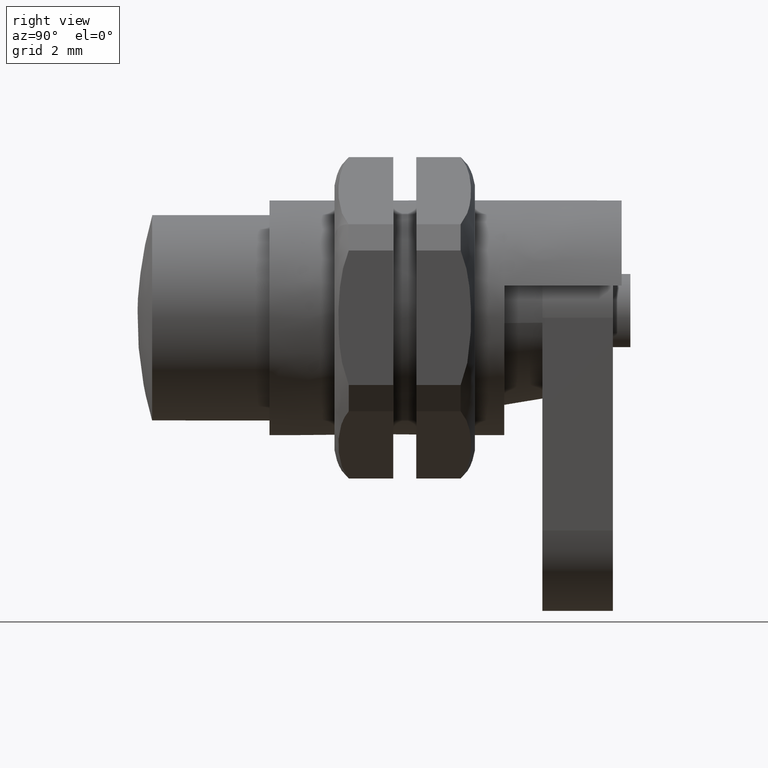
[diagram: clean part render]
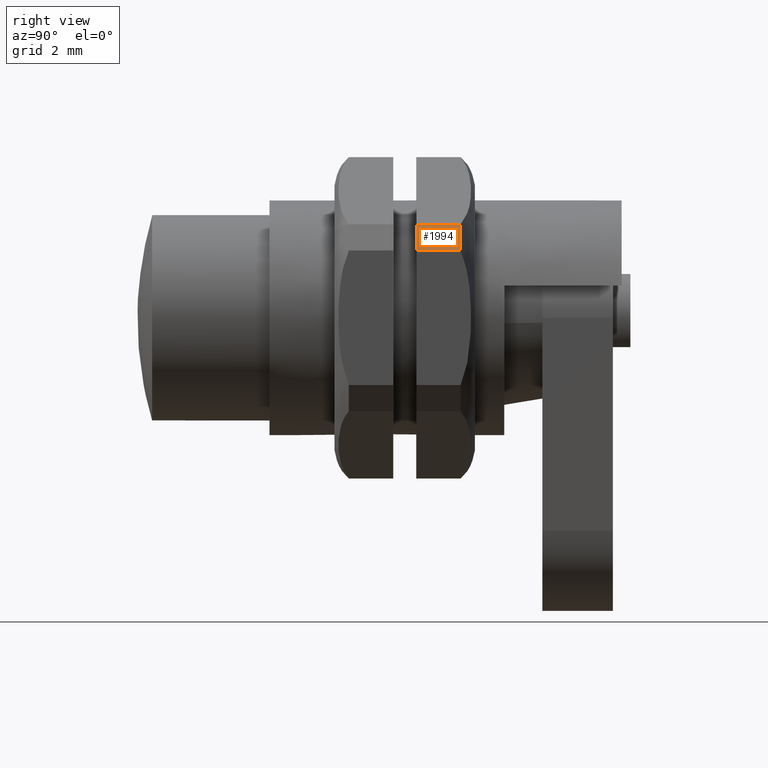
[diagram: same view with one face highlighted and labeled with its STEP entity id]
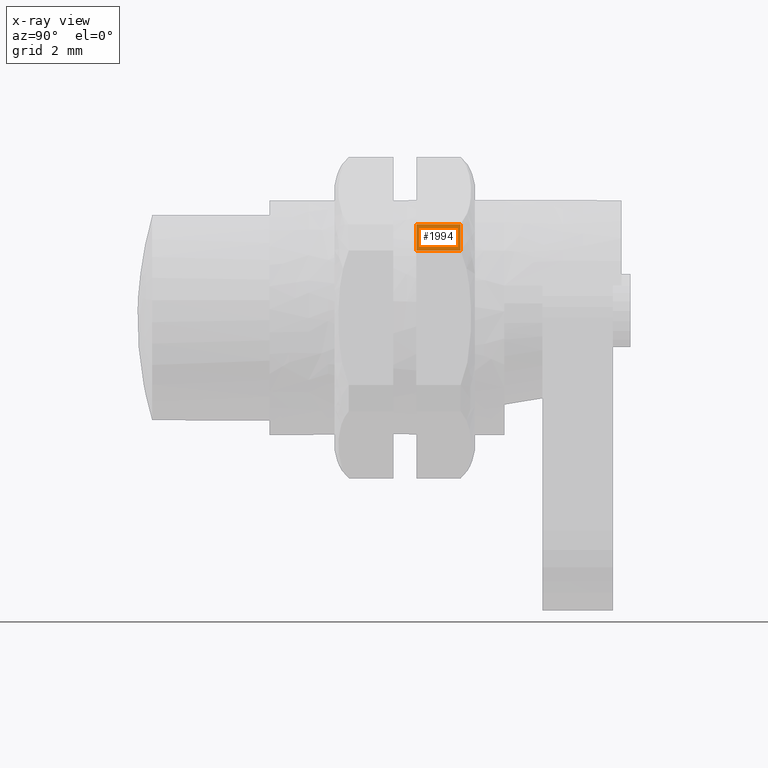
[diagram: x-ray of the same camera — body ghosted, the highlighted face saturated]
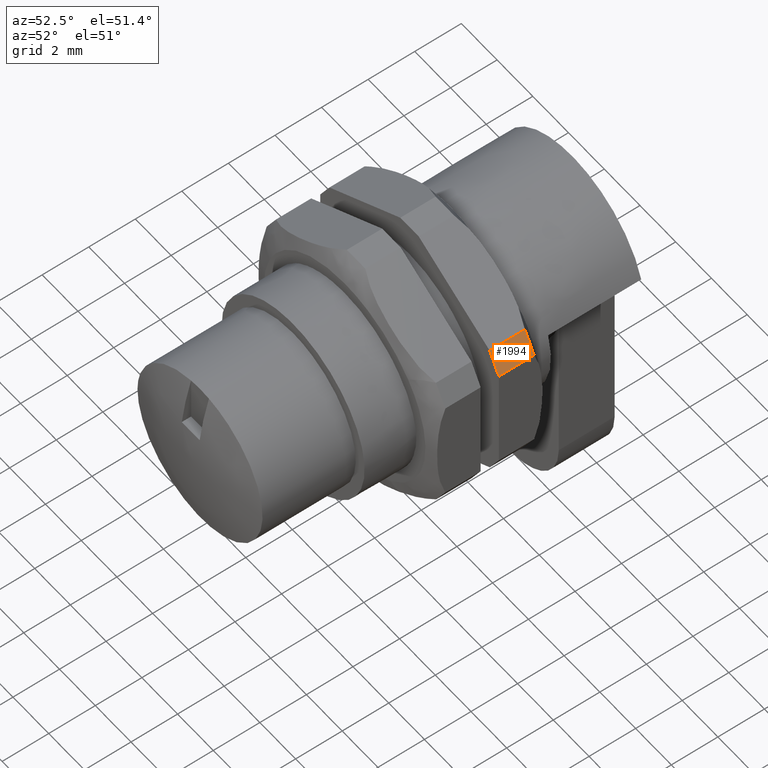
[diagram: same view with one face highlighted and labeled with its STEP entity id]
A machine part, right view. The second image highlights one B-rep face of the part: STEP entity #1994.
The next image is the same camera in x-ray: the body ghosted, the highlighted face saturated — about 0% of this face is hidden behind the body in this view.
A second angle (auxiliary view) of the same face is appended — the face is thin or edge-on in the first view.
In plain terms, the highlighted face is a freeform B-spline surface patch.
Its self-contained STEP definition (entity closure, byte-faithful):
#1441=CARTESIAN_POINT('',(90.623090530386193,-4.483213848676265,91.525342008486504));
#1442=VERTEX_POINT('',#1441);
#1470=CARTESIAN_POINT('',(90.623090530386193,-4.999999999999941,90.630598847477998));
#1471=VERTEX_POINT('',#1470);
#1472=CARTESIAN_POINT('',(90.623090530386193,-4.999999999999962,90.630598847478012));
#1473=CARTESIAN_POINT('',(90.623090530386193,-4.783816524213536,91.102349867377967));
#1474=CARTESIAN_POINT('',(90.623090530386193,-4.483213848676257,91.525342008486490));
#1482=(BOUNDED_CURVE()B_SPLINE_CURVE(2,(#1472,#1473,#1474),.UNSPECIFIED.,.F.,.U.)CURVE()GEOMETRIC_REPRESENTATION_ITEM()QUASI_UNIFORM_CURVE()RATIONAL_B_SPLINE_CURVE((1.0,0.995578517600533,1.0))REPRESENTATION_ITEM(''));
#1483=EDGE_CURVE('',#1471,#1442,#1482,.T.);
#1941=CARTESIAN_POINT('',(89.108363999999995,-4.999999999999941,90.630598847477998));
#1942=VERTEX_POINT('',#1941);
#1943=CARTESIAN_POINT('',(90.623090530386193,-4.999999999999941,90.630598847477998));
#1944=CARTESIAN_POINT('',(89.108363999999995,-4.999999999999941,90.630598847477998));
#1945=QUASI_UNIFORM_CURVE('',1,(#1943,#1944),.UNSPECIFIED.,.F.,.U.);
#1946=EDGE_CURVE('',#1471,#1942,#1945,.T.);
#1956=CARTESIAN_POINT('',(90.660958693645867,-4.453127884175061,91.567259581867830));
#1957=CARTESIAN_POINT('',(89.069549132658835,-4.453127884175061,91.567259581867830));
#1958=CARTESIAN_POINT('',(90.660958693645867,-4.788267312998820,91.104916797362264));
#1959=CARTESIAN_POINT('',(89.069549132658835,-4.788267312998820,91.104916797362264));
#1960=CARTESIAN_POINT('',(90.660958693645853,-5.021277572325077,90.583586282059926));
#1961=CARTESIAN_POINT('',(89.069549132658821,-5.021277572325077,90.583586282059926));
#1969=(BOUNDED_SURFACE()B_SPLINE_SURFACE(1,2,((#1956,#1958,#1960),(#1957,#1959,#1961)),.UNSPECIFIED.,.F.,.F.,.U.)B_SPLINE_SURFACE_WITH_KNOTS((2,2),(3,3),(0.0,1.0),(0.122919943033904,0.863308895529062),.UNSPECIFIED.)GEOMETRIC_REPRESENTATION_ITEM()RATIONAL_B_SPLINE_SURFACE(((0.997901588707397,0.992467552569968,0.997703134857822),(0.997901588707397,0.992467552569968,0.997703134857822)))REPRESENTATION_ITEM('')SURFACE());
#1970=ORIENTED_EDGE('',*,*,#1946,.F.);
#1971=ORIENTED_EDGE('',*,*,#1483,.T.);
#1972=CARTESIAN_POINT('',(89.108363999999995,-4.483213848676260,91.525342008486504));
#1973=VERTEX_POINT('',#1972);
#1974=CARTESIAN_POINT('',(90.623090530386193,-4.483213848676265,91.525342008486504));
#1975=CARTESIAN_POINT('',(89.108363999999995,-4.483213848676260,91.525342008486504));
#1976=QUASI_UNIFORM_CURVE('',1,(#1974,#1975),.UNSPECIFIED.,.F.,.U.);
#1977=EDGE_CURVE('',#1442,#1973,#1976,.T.);
#1978=ORIENTED_EDGE('',*,*,#1977,.T.);
#1979=CARTESIAN_POINT('',(89.108363999999995,-4.483213848676253,91.525342008486504));
#1980=CARTESIAN_POINT('',(89.108363999999995,-4.783816524213535,91.102349867377967));
#1981=CARTESIAN_POINT('',(89.108363999999995,-4.999999999999962,90.630598847478012));
#1989=(BOUNDED_CURVE()B_SPLINE_CURVE(2,(#1979,#1980,#1981),.UNSPECIFIED.,.F.,.U.)CURVE()GEOMETRIC_REPRESENTATION_ITEM()QUASI_UNIFORM_CURVE()RATIONAL_B_SPLINE_CURVE((1.0,0.995578517600533,1.0))REPRESENTATION_ITEM(''));
#1990=EDGE_CURVE('',#1973,#1942,#1989,.T.);
#1991=ORIENTED_EDGE('',*,*,#1990,.T.);
#1992=EDGE_LOOP('',(#1970,#1971,#1978,#1991));
#1993=FACE_OUTER_BOUND('',#1992,.T.);
#1994=ADVANCED_FACE('',(#1993),#1969,.T.);